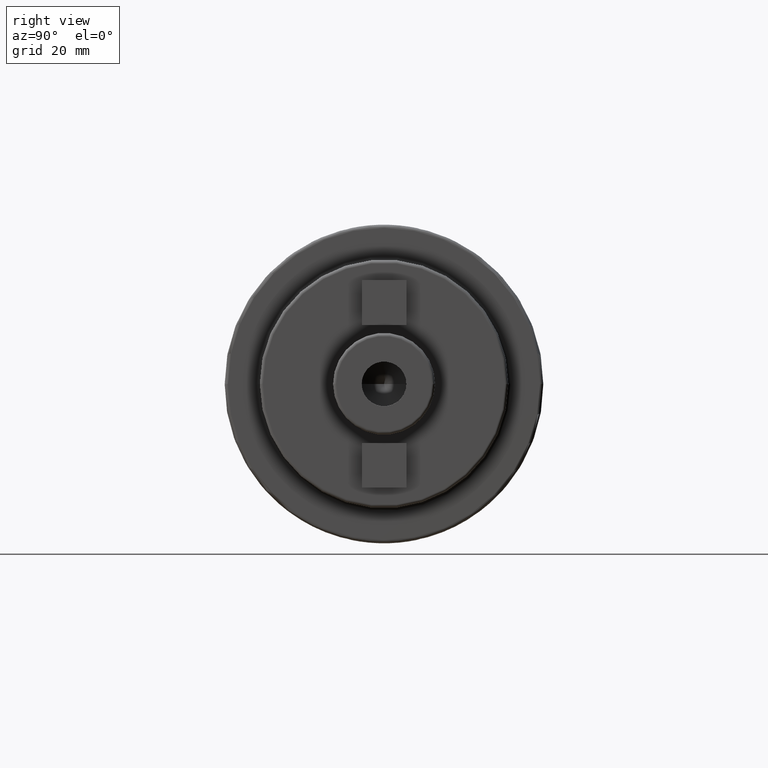
[diagram: clean part render]
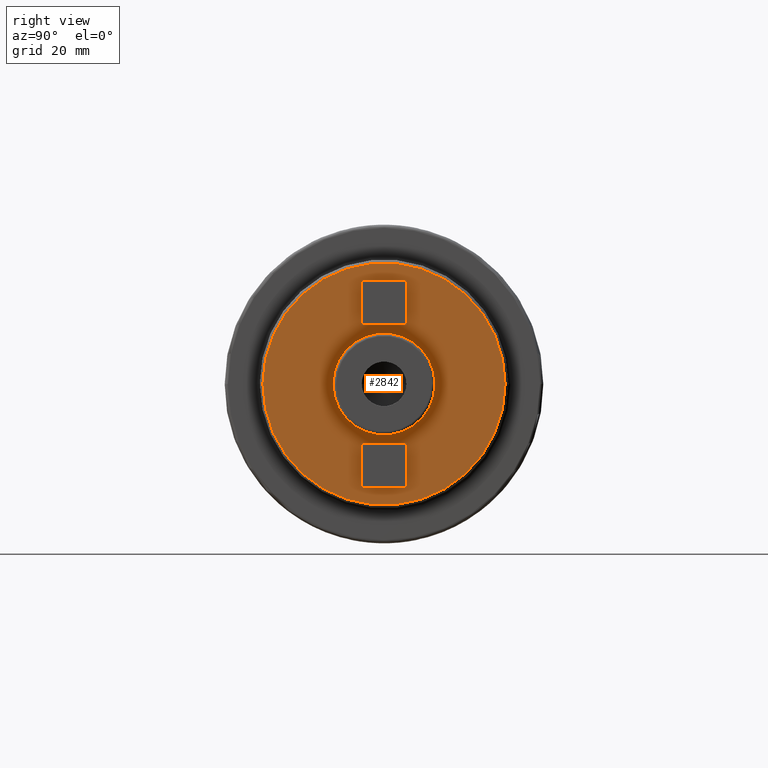
[diagram: same view with one face highlighted and labeled with its STEP entity id]
A machine part, right view. The second image highlights one B-rep face of the part: STEP entity #2842.
In plain terms, the highlighted planar face has unit normal (1, 0, 0).
Its self-contained STEP definition (entity closure, byte-faithful):
#892=CARTESIAN_POINT('',(5.5E1,0.E0,0.E0));
#893=DIRECTION('',(1.E0,0.E0,0.E0));
#894=DIRECTION('',(0.E0,1.E0,0.E0));
#895=AXIS2_PLACEMENT_3D('',#892,#893,#894);
#897=CARTESIAN_POINT('',(5.5E1,0.E0,0.E0));
#898=DIRECTION('',(-1.E0,0.E0,0.E0));
#899=DIRECTION('',(0.E0,1.E0,0.E0));
#900=AXIS2_PLACEMENT_3D('',#897,#898,#899);
#902=CARTESIAN_POINT('',(5.5E1,0.E0,0.E0));
#903=DIRECTION('',(-1.E0,0.E0,0.E0));
#904=DIRECTION('',(0.E0,1.E0,0.E0));
#905=AXIS2_PLACEMENT_3D('',#902,#903,#904);
#907=CARTESIAN_POINT('',(5.5E1,0.E0,0.E0));
#908=DIRECTION('',(-1.E0,0.E0,0.E0));
#909=DIRECTION('',(0.E0,-1.E0,0.E0));
#910=AXIS2_PLACEMENT_3D('',#907,#908,#909);
#912=DIRECTION('',(0.E0,-1.E0,0.E0));
#913=VECTOR('',#912,1.4E1);
#914=CARTESIAN_POINT('',(5.5E1,7.E0,-1.85E1));
#915=LINE('',#914,#913);
#916=DIRECTION('',(0.E0,0.E0,-1.E0));
#917=VECTOR('',#916,1.4E1);
#918=CARTESIAN_POINT('',(5.5E1,-7.E0,-1.85E1));
#919=LINE('',#918,#917);
#920=DIRECTION('',(0.E0,1.E0,0.E0));
#921=VECTOR('',#920,1.4E1);
#922=CARTESIAN_POINT('',(5.5E1,-7.E0,-3.25E1));
#923=LINE('',#922,#921);
#924=DIRECTION('',(0.E0,0.E0,1.E0));
#925=VECTOR('',#924,1.4E1);
#926=CARTESIAN_POINT('',(5.5E1,7.E0,-3.25E1));
#927=LINE('',#926,#925);
#928=DIRECTION('',(0.E0,0.E0,1.E0));
#929=VECTOR('',#928,1.4E1);
#930=CARTESIAN_POINT('',(5.5E1,7.E0,1.85E1));
#931=LINE('',#930,#929);
#932=DIRECTION('',(0.E0,-1.E0,0.E0));
#933=VECTOR('',#932,1.4E1);
#934=CARTESIAN_POINT('',(5.5E1,7.E0,3.25E1));
#935=LINE('',#934,#933);
#936=DIRECTION('',(0.E0,0.E0,-1.E0));
#937=VECTOR('',#936,1.4E1);
#938=CARTESIAN_POINT('',(5.5E1,-7.E0,3.25E1));
#939=LINE('',#938,#937);
#940=DIRECTION('',(0.E0,1.E0,0.E0));
#941=VECTOR('',#940,1.4E1);
#942=CARTESIAN_POINT('',(5.5E1,-7.E0,1.85E1));
#943=LINE('',#942,#941);
#1525=CARTESIAN_POINT('',(5.5E1,1.6E1,0.E0));
#1526=CARTESIAN_POINT('',(5.5E1,-1.6E1,0.E0));
#1527=VERTEX_POINT('',#1525);
#1528=VERTEX_POINT('',#1526);
#1545=CARTESIAN_POINT('',(5.5E1,7.E0,-1.85E1));
#1546=VERTEX_POINT('',#1545);
#1547=CARTESIAN_POINT('',(5.5E1,-7.E0,-1.85E1));
#1548=VERTEX_POINT('',#1547);
#1549=CARTESIAN_POINT('',(5.5E1,-7.E0,-3.25E1));
#1550=VERTEX_POINT('',#1549);
#1551=CARTESIAN_POINT('',(5.5E1,7.E0,-3.25E1));
#1552=VERTEX_POINT('',#1551);
#1553=CARTESIAN_POINT('',(5.5E1,7.E0,1.85E1));
#1554=VERTEX_POINT('',#1553);
#1555=CARTESIAN_POINT('',(5.5E1,7.E0,3.25E1));
#1556=VERTEX_POINT('',#1555);
#1557=CARTESIAN_POINT('',(5.5E1,-7.E0,3.25E1));
#1558=VERTEX_POINT('',#1557);
#1559=CARTESIAN_POINT('',(5.5E1,-7.E0,1.85E1));
#1560=VERTEX_POINT('',#1559);
#1583=CARTESIAN_POINT('',(5.5E1,3.8E1,0.E0));
#1584=CARTESIAN_POINT('',(5.5E1,-3.8E1,0.E0));
#1585=VERTEX_POINT('',#1583);
#1586=VERTEX_POINT('',#1584);
#2807=CARTESIAN_POINT('',(5.5E1,0.E0,0.E0));
#2808=DIRECTION('',(1.E0,0.E0,0.E0));
#2809=DIRECTION('',(0.E0,-1.E0,0.E0));
#2810=AXIS2_PLACEMENT_3D('',#2807,#2808,#2809);
#2811=PLANE('',#2810);
#2812=ORIENTED_EDGE('',*,*,#2789,.T.);
#2813=ORIENTED_EDGE('',*,*,#2774,.T.);
#2814=EDGE_LOOP('',(#2812,#2813));
#2815=FACE_OUTER_BOUND('',#2814,.F.);
#2817=ORIENTED_EDGE('',*,*,#2816,.T.);
#2819=ORIENTED_EDGE('',*,*,#2818,.F.);
#2820=EDGE_LOOP('',(#2817,#2819));
#2821=FACE_BOUND('',#2820,.F.);
#2823=ORIENTED_EDGE('',*,*,#2822,.T.);
#2825=ORIENTED_EDGE('',*,*,#2824,.T.);
#2827=ORIENTED_EDGE('',*,*,#2826,.T.);
#2829=ORIENTED_EDGE('',*,*,#2828,.T.);
#2830=EDGE_LOOP('',(#2823,#2825,#2827,#2829));
#2831=FACE_BOUND('',#2830,.F.);
#2833=ORIENTED_EDGE('',*,*,#2832,.T.);
#2835=ORIENTED_EDGE('',*,*,#2834,.T.);
#2837=ORIENTED_EDGE('',*,*,#2836,.T.);
#2839=ORIENTED_EDGE('',*,*,#2838,.T.);
#2840=EDGE_LOOP('',(#2833,#2835,#2837,#2839));
#2841=FACE_BOUND('',#2840,.F.);
#2842=ADVANCED_FACE('',(#2815,#2821,#2831,#2841),#2811,.T.);
#896=CIRCLE('',#895,1.6E1);
#901=CIRCLE('',#900,1.6E1);
#906=CIRCLE('',#905,3.8E1);
#911=CIRCLE('',#910,3.8E1);
#2774=EDGE_CURVE('',#1586,#1585,#911,.T.);
#2789=EDGE_CURVE('',#1585,#1586,#906,.T.);
#2816=EDGE_CURVE('',#1527,#1528,#896,.T.);
#2818=EDGE_CURVE('',#1527,#1528,#901,.T.);
#2822=EDGE_CURVE('',#1546,#1548,#915,.T.);
#2824=EDGE_CURVE('',#1548,#1550,#919,.T.);
#2826=EDGE_CURVE('',#1550,#1552,#923,.T.);
#2828=EDGE_CURVE('',#1552,#1546,#927,.T.);
#2832=EDGE_CURVE('',#1554,#1556,#931,.T.);
#2834=EDGE_CURVE('',#1556,#1558,#935,.T.);
#2836=EDGE_CURVE('',#1558,#1560,#939,.T.);
#2838=EDGE_CURVE('',#1560,#1554,#943,.T.);